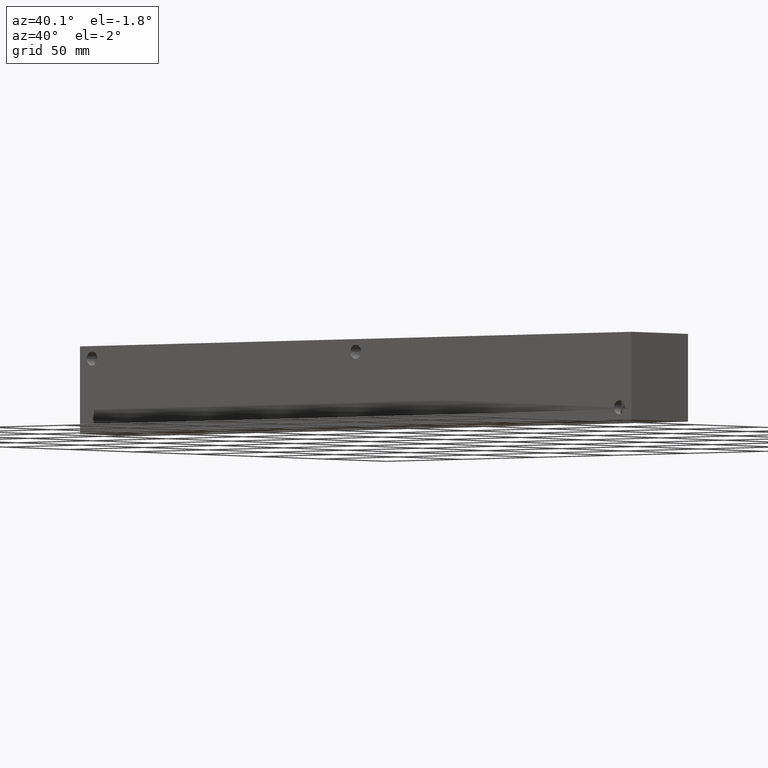
[diagram: clean part render]
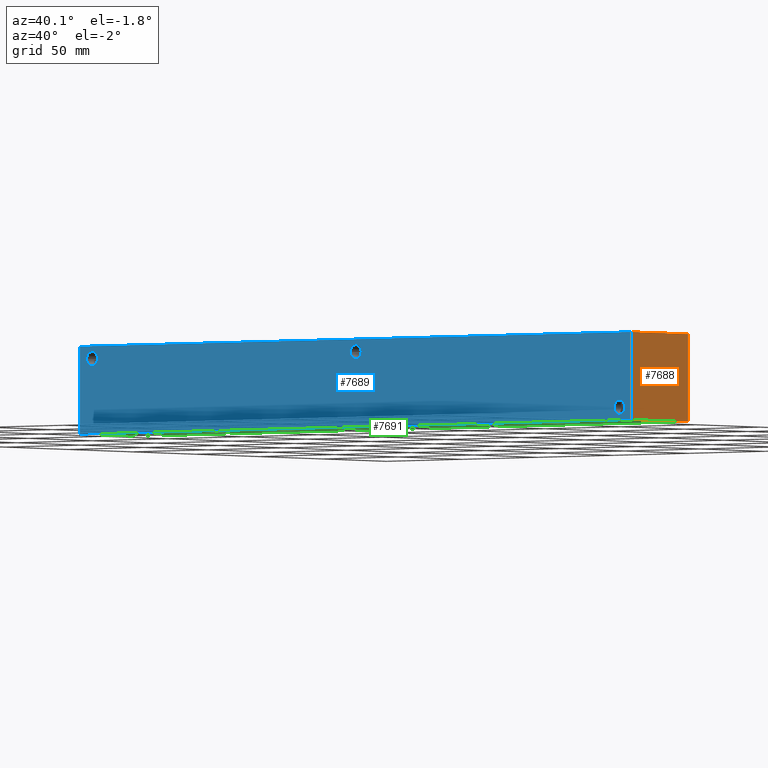
[diagram: same view with three faces highlighted in distinct colors, each labeled with its STEP entity id]
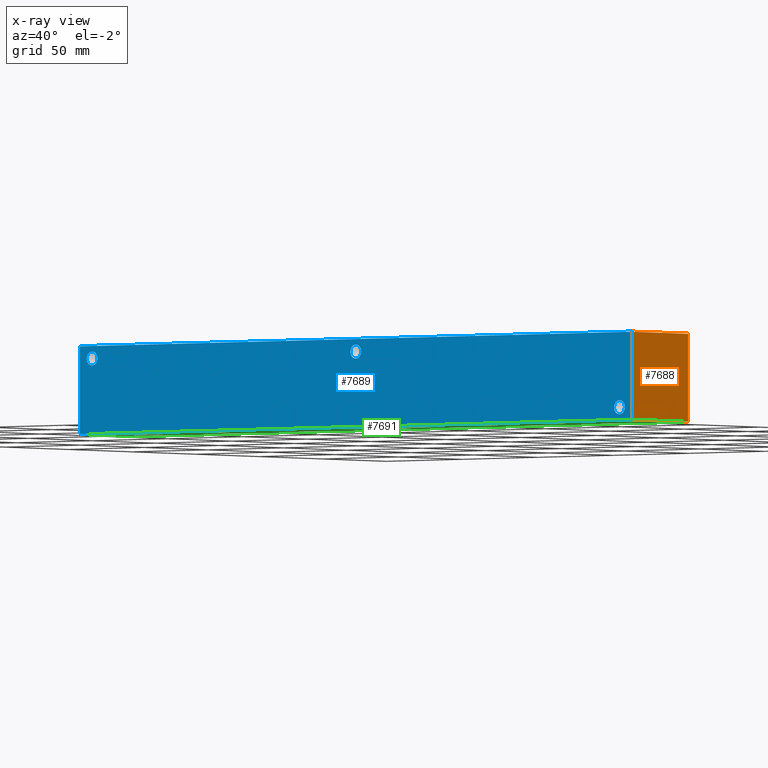
[diagram: x-ray of the same camera — body ghosted, the three highlighted faces saturated]
A machine part, auxiliary view with three faces highlighted in distinct colors.
The next image is the same camera in x-ray (body ghosted, the three faces saturated) — at least one of them is partly hidden behind the body in this view.
Their STEP definitions:

[orange] entity #7688 — the highlighted planar face has unit normal (1, 0, 0).
#524=PLANE('',#8141);
#917=FACE_OUTER_BOUND('',#1371,.T.);
#1371=EDGE_LOOP('',(#6863,#6864,#6865,#6866));
#1661=LINE('',#11799,#2381);
#2105=LINE('',#13152,#2825);
#2106=LINE('',#13155,#2826);
#2107=LINE('',#13156,#2827);
#2381=VECTOR('',#8563,10.);
#2825=VECTOR('',#9733,10.);
#2826=VECTOR('',#9736,10.);
#2827=VECTOR('',#9737,10.);
#3320=VERTEX_POINT('',#11796);
#3321=VERTEX_POINT('',#11798);
#3739=VERTEX_POINT('',#13150);
#3740=VERTEX_POINT('',#13154);
#4189=EDGE_CURVE('',#3320,#3321,#1661,.T.);
#4791=EDGE_CURVE('',#3739,#3321,#2105,.T.);
#4792=EDGE_CURVE('',#3740,#3739,#2106,.T.);
#4793=EDGE_CURVE('',#3740,#3320,#2107,.T.);
#6863=ORIENTED_EDGE('',*,*,#4792,.T.);
#6864=ORIENTED_EDGE('',*,*,#4791,.T.);
#6865=ORIENTED_EDGE('',*,*,#4189,.F.);
#6866=ORIENTED_EDGE('',*,*,#4793,.F.);
#7688=ADVANCED_FACE('',(#917),#524,.T.);
#8141=AXIS2_PLACEMENT_3D('',#13153,#9734,#9735);
#8563=DIRECTION('',(0.,1.,0.));
#9733=DIRECTION('',(0.,0.,1.));
#9734=DIRECTION('center_axis',(1.,0.,0.));
#9735=DIRECTION('ref_axis',(0.,1.,0.));
#9736=DIRECTION('',(0.,1.,0.));
#9737=DIRECTION('',(0.,0.,1.));
#11796=CARTESIAN_POINT('',(365.125,0.,44.45));
#11798=CARTESIAN_POINT('',(365.125,44.45,44.45));
#11799=CARTESIAN_POINT('',(365.125,0.,44.45));
#13150=CARTESIAN_POINT('',(365.125,44.45,0.));
#13152=CARTESIAN_POINT('',(365.125,44.45,0.));
#13153=CARTESIAN_POINT('Origin',(365.125,0.,0.));
#13154=CARTESIAN_POINT('',(365.125,0.,0.));
#13155=CARTESIAN_POINT('',(365.125,0.,0.));
#13156=CARTESIAN_POINT('',(365.125,0.,0.));

[blue] entity #7689 — the highlighted planar face has unit normal (0, -1, 0).
#164=CIRCLE('',#8032,3.5687);
#165=CIRCLE('',#8033,3.5687);
#167=CIRCLE('',#8042,3.5687);
#168=CIRCLE('',#8043,3.5687);
#170=CIRCLE('',#8051,3.5687);
#171=CIRCLE('',#8052,3.5687);
#277=FACE_BOUND('',#1373,.T.);
#278=FACE_BOUND('',#1374,.T.);
#279=FACE_BOUND('',#1375,.T.);
#525=PLANE('',#8142);
#918=FACE_OUTER_BOUND('',#1372,.T.);
#1372=EDGE_LOOP('',(#6867,#6868,#6869,#6870));
#1373=EDGE_LOOP('',(#6871,#6872));
#1374=EDGE_LOOP('',(#6873,#6874));
#1375=EDGE_LOOP('',(#6875,#6876));
#1660=LINE('',#11797,#2380);
#2102=LINE('',#13147,#2822);
#2107=LINE('',#13156,#2827);
#2108=LINE('',#13158,#2828);
#2380=VECTOR('',#8562,10.);
#2822=VECTOR('',#9728,10.);
#2827=VECTOR('',#9737,10.);
#2828=VECTOR('',#9740,10.);
#3319=VERTEX_POINT('',#11795);
#3320=VERTEX_POINT('',#11796);
#3671=VERTEX_POINT('',#12934);
#3672=VERTEX_POINT('',#12935);
#3676=VERTEX_POINT('',#12952);
#3677=VERTEX_POINT('',#12953);
#3681=VERTEX_POINT('',#12968);
#3682=VERTEX_POINT('',#12969);
#3738=VERTEX_POINT('',#13145);
#3740=VERTEX_POINT('',#13154);
#4188=EDGE_CURVE('',#3319,#3320,#1660,.T.);
#4687=EDGE_CURVE('',#3671,#3672,#164,.T.);
#4688=EDGE_CURVE('',#3672,#3671,#165,.T.);
#4697=EDGE_CURVE('',#3676,#3677,#167,.T.);
#4698=EDGE_CURVE('',#3677,#3676,#168,.T.);
#4706=EDGE_CURVE('',#3681,#3682,#170,.T.);
#4707=EDGE_CURVE('',#3682,#3681,#171,.T.);
#4788=EDGE_CURVE('',#3738,#3319,#2102,.T.);
#4793=EDGE_CURVE('',#3740,#3320,#2107,.T.);
#4794=EDGE_CURVE('',#3738,#3740,#2108,.T.);
#6867=ORIENTED_EDGE('',*,*,#4794,.T.);
#6868=ORIENTED_EDGE('',*,*,#4793,.T.);
#6869=ORIENTED_EDGE('',*,*,#4188,.F.);
#6870=ORIENTED_EDGE('',*,*,#4788,.F.);
#6871=ORIENTED_EDGE('',*,*,#4687,.T.);
#6872=ORIENTED_EDGE('',*,*,#4688,.T.);
#6873=ORIENTED_EDGE('',*,*,#4697,.T.);
#6874=ORIENTED_EDGE('',*,*,#4698,.T.);
#6875=ORIENTED_EDGE('',*,*,#4706,.T.);
#6876=ORIENTED_EDGE('',*,*,#4707,.T.);
#7689=ADVANCED_FACE('',(#918,#277,#278,#279),#525,.T.);
#8032=AXIS2_PLACEMENT_3D('',#12936,#9475,#9476);
#8033=AXIS2_PLACEMENT_3D('',#12937,#9477,#9478);
#8042=AXIS2_PLACEMENT_3D('',#12954,#9498,#9499);
#8043=AXIS2_PLACEMENT_3D('',#12955,#9500,#9501);
#8051=AXIS2_PLACEMENT_3D('',#12970,#9518,#9519);
#8052=AXIS2_PLACEMENT_3D('',#12971,#9520,#9521);
#8142=AXIS2_PLACEMENT_3D('',#13157,#9738,#9739);
#8562=DIRECTION('',(1.,0.,0.));
#9475=DIRECTION('center_axis',(0.,1.,0.));
#9476=DIRECTION('ref_axis',(1.,0.,0.));
#9477=DIRECTION('center_axis',(0.,1.,0.));
#9478=DIRECTION('ref_axis',(1.,0.,0.));
#9498=DIRECTION('center_axis',(0.,1.,0.));
#9499=DIRECTION('ref_axis',(1.,0.,0.));
#9500=DIRECTION('center_axis',(0.,1.,0.));
#9501=DIRECTION('ref_axis',(1.,0.,0.));
#9518=DIRECTION('center_axis',(0.,1.,0.));
#9519=DIRECTION('ref_axis',(1.,0.,0.));
#9520=DIRECTION('center_axis',(0.,1.,0.));
#9521=DIRECTION('ref_axis',(1.,0.,0.));
#9728=DIRECTION('',(0.,0.,1.));
#9737=DIRECTION('',(0.,0.,1.));
#9738=DIRECTION('center_axis',(0.,-1.,0.));
#9739=DIRECTION('ref_axis',(1.,0.,0.));
#9740=DIRECTION('',(1.,0.,0.));
#11795=CARTESIAN_POINT('',(0.,0.,44.45));
#11796=CARTESIAN_POINT('',(365.125,0.,44.45));
#11797=CARTESIAN_POINT('',(0.,0.,44.45));
#12934=CARTESIAN_POINT('',(360.7435,0.,6.35));
#12935=CARTESIAN_POINT('',(353.6061,0.,6.35));
#12936=CARTESIAN_POINT('Origin',(357.1748,0.,6.35));
#12937=CARTESIAN_POINT('Origin',(357.1748,0.,6.35));
#12952=CARTESIAN_POINT('',(11.4935,0.,38.1));
#12953=CARTESIAN_POINT('',(4.3561,0.,38.1));
#12954=CARTESIAN_POINT('Origin',(7.9248,0.,38.1));
#12955=CARTESIAN_POINT('Origin',(7.9248,0.,38.1));
#12968=CARTESIAN_POINT('',(186.1439,0.,38.1));
#12969=CARTESIAN_POINT('',(179.0065,0.,38.1));
#12970=CARTESIAN_POINT('Origin',(182.5752,0.,38.1));
#12971=CARTESIAN_POINT('Origin',(182.5752,0.,38.1));
#13145=CARTESIAN_POINT('',(0.,0.,0.));
#13147=CARTESIAN_POINT('',(0.,0.,0.));
#13154=CARTESIAN_POINT('',(365.125,0.,0.));
#13156=CARTESIAN_POINT('',(365.125,0.,0.));
#13157=CARTESIAN_POINT('Origin',(0.,0.,0.));
#13158=CARTESIAN_POINT('',(0.,0.,0.));

[green] entity #7691 — the highlighted planar face has unit normal (0, 0, 1).
#113=CIRCLE('',#7951,6.9342);
#114=CIRCLE('',#7952,6.9342);
#120=CIRCLE('',#7962,6.9342);
#121=CIRCLE('',#7963,6.9342);
#127=CIRCLE('',#7973,6.9342);
#128=CIRCLE('',#7974,6.9342);
#134=CIRCLE('',#7984,6.9342);
#135=CIRCLE('',#7985,6.9342);
#141=CIRCLE('',#7995,6.9342);
#142=CIRCLE('',#7996,6.9342);
#148=CIRCLE('',#8006,6.9342);
#149=CIRCLE('',#8007,6.9342);
#155=CIRCLE('',#8017,6.9342);
#156=CIRCLE('',#8018,6.9342);
#162=CIRCLE('',#8028,6.9342);
#163=CIRCLE('',#8029,6.9342);
#173=CIRCLE('',#8062,3.5687);
#174=CIRCLE('',#8064,3.5687);
#175=CIRCLE('',#8066,3.5687);
#280=FACE_BOUND('',#1378,.T.);
#281=FACE_BOUND('',#1379,.T.);
#282=FACE_BOUND('',#1380,.T.);
#283=FACE_BOUND('',#1381,.T.);
#284=FACE_BOUND('',#1382,.T.);
#285=FACE_BOUND('',#1383,.T.);
#286=FACE_BOUND('',#1384,.T.);
#287=FACE_BOUND('',#1385,.T.);
#288=FACE_BOUND('',#1386,.T.);
#289=FACE_BOUND('',#1387,.T.);
#290=FACE_BOUND('',#1388,.T.);
#527=PLANE('',#8144);
#920=FACE_OUTER_BOUND('',#1377,.T.);
#1377=EDGE_LOOP('',(#6880,#6881,#6882,#6883));
#1378=EDGE_LOOP('',(#6884,#6885));
#1379=EDGE_LOOP('',(#6886,#6887));
#1380=EDGE_LOOP('',(#6888,#6889));
#1381=EDGE_LOOP('',(#6890,#6891));
#1382=EDGE_LOOP('',(#6892,#6893));
#1383=EDGE_LOOP('',(#6894,#6895));
#1384=EDGE_LOOP('',(#6896,#6897));
#1385=EDGE_LOOP('',(#6898,#6899));
#1386=EDGE_LOOP('',(#6900));
#1387=EDGE_LOOP('',(#6901));
#1388=EDGE_LOOP('',(#6902));
#2101=LINE('',#13146,#2821);
#2104=LINE('',#13151,#2824);
#2106=LINE('',#13155,#2826);
#2108=LINE('',#13158,#2828);
#2821=VECTOR('',#9727,10.);
#2824=VECTOR('',#9732,10.);
#2826=VECTOR('',#9736,10.);
#2828=VECTOR('',#9740,10.);
#3613=VERTEX_POINT('',#12772);
#3614=VERTEX_POINT('',#12773);
#3621=VERTEX_POINT('',#12794);
#3622=VERTEX_POINT('',#12795);
#3629=VERTEX_POINT('',#12816);
#3630=VERTEX_POINT('',#12817);
#3637=VERTEX_POINT('',#12838);
#3638=VERTEX_POINT('',#12839);
#3645=VERTEX_POINT('',#12860);
#3646=VERTEX_POINT('',#12861);
#3653=VERTEX_POINT('',#12882);
#3654=VERTEX_POINT('',#12883);
#3661=VERTEX_POINT('',#12904);
#3662=VERTEX_POINT('',#12905);
#3669=VERTEX_POINT('',#12926);
#3670=VERTEX_POINT('',#12927);
#3686=VERTEX_POINT('',#12988);
#3687=VERTEX_POINT('',#12992);
#3688=VERTEX_POINT('',#12996);
#3737=VERTEX_POINT('',#13144);
#3738=VERTEX_POINT('',#13145);
#3739=VERTEX_POINT('',#13150);
#3740=VERTEX_POINT('',#13154);
#4613=EDGE_CURVE('',#3613,#3614,#113,.T.);
#4614=EDGE_CURVE('',#3614,#3613,#114,.T.);
#4623=EDGE_CURVE('',#3621,#3622,#120,.T.);
#4624=EDGE_CURVE('',#3622,#3621,#121,.T.);
#4633=EDGE_CURVE('',#3629,#3630,#127,.T.);
#4634=EDGE_CURVE('',#3630,#3629,#128,.T.);
#4643=EDGE_CURVE('',#3637,#3638,#134,.T.);
#4644=EDGE_CURVE('',#3638,#3637,#135,.T.);
#4653=EDGE_CURVE('',#3645,#3646,#141,.T.);
#4654=EDGE_CURVE('',#3646,#3645,#142,.T.);
#4663=EDGE_CURVE('',#3653,#3654,#148,.T.);
#4664=EDGE_CURVE('',#3654,#3653,#149,.T.);
#4673=EDGE_CURVE('',#3661,#3662,#155,.T.);
#4674=EDGE_CURVE('',#3662,#3661,#156,.T.);
#4683=EDGE_CURVE('',#3669,#3670,#162,.T.);
#4684=EDGE_CURVE('',#3670,#3669,#163,.T.);
#4718=EDGE_CURVE('',#3686,#3686,#173,.T.);
#4720=EDGE_CURVE('',#3687,#3687,#174,.T.);
#4722=EDGE_CURVE('',#3688,#3688,#175,.T.);
#4787=EDGE_CURVE('',#3737,#3738,#2101,.T.);
#4790=EDGE_CURVE('',#3739,#3737,#2104,.T.);
#4792=EDGE_CURVE('',#3740,#3739,#2106,.T.);
#4794=EDGE_CURVE('',#3738,#3740,#2108,.T.);
#6880=ORIENTED_EDGE('',*,*,#4794,.F.);
#6881=ORIENTED_EDGE('',*,*,#4787,.F.);
#6882=ORIENTED_EDGE('',*,*,#4790,.F.);
#6883=ORIENTED_EDGE('',*,*,#4792,.F.);
#6884=ORIENTED_EDGE('',*,*,#4613,.T.);
#6885=ORIENTED_EDGE('',*,*,#4614,.T.);
#6886=ORIENTED_EDGE('',*,*,#4623,.T.);
#6887=ORIENTED_EDGE('',*,*,#4624,.T.);
#6888=ORIENTED_EDGE('',*,*,#4633,.T.);
#6889=ORIENTED_EDGE('',*,*,#4634,.T.);
#6890=ORIENTED_EDGE('',*,*,#4643,.T.);
#6891=ORIENTED_EDGE('',*,*,#4644,.T.);
#6892=ORIENTED_EDGE('',*,*,#4653,.T.);
#6893=ORIENTED_EDGE('',*,*,#4654,.T.);
#6894=ORIENTED_EDGE('',*,*,#4663,.T.);
#6895=ORIENTED_EDGE('',*,*,#4664,.T.);
#6896=ORIENTED_EDGE('',*,*,#4673,.T.);
#6897=ORIENTED_EDGE('',*,*,#4674,.T.);
#6898=ORIENTED_EDGE('',*,*,#4683,.T.);
#6899=ORIENTED_EDGE('',*,*,#4684,.T.);
#6900=ORIENTED_EDGE('',*,*,#4718,.T.);
#6901=ORIENTED_EDGE('',*,*,#4720,.T.);
#6902=ORIENTED_EDGE('',*,*,#4722,.T.);
#7691=ADVANCED_FACE('',(#920,#280,#281,#282,#283,#284,#285,#286,#287,#288,
#289,#290),#527,.F.);
#7951=AXIS2_PLACEMENT_3D('',#12774,#9290,#9291);
#7952=AXIS2_PLACEMENT_3D('',#12775,#9292,#9293);
#7962=AXIS2_PLACEMENT_3D('',#12796,#9315,#9316);
#7963=AXIS2_PLACEMENT_3D('',#12797,#9317,#9318);
#7973=AXIS2_PLACEMENT_3D('',#12818,#9340,#9341);
#7974=AXIS2_PLACEMENT_3D('',#12819,#9342,#9343);
#7984=AXIS2_PLACEMENT_3D('',#12840,#9365,#9366);
#7985=AXIS2_PLACEMENT_3D('',#12841,#9367,#9368);
#7995=AXIS2_PLACEMENT_3D('',#12862,#9390,#9391);
#7996=AXIS2_PLACEMENT_3D('',#12863,#9392,#9393);
#8006=AXIS2_PLACEMENT_3D('',#12884,#9415,#9416);
#8007=AXIS2_PLACEMENT_3D('',#12885,#9417,#9418);
#8017=AXIS2_PLACEMENT_3D('',#12906,#9440,#9441);
#8018=AXIS2_PLACEMENT_3D('',#12907,#9442,#9443);
#8028=AXIS2_PLACEMENT_3D('',#12928,#9465,#9466);
#8029=AXIS2_PLACEMENT_3D('',#12929,#9467,#9468);
#8062=AXIS2_PLACEMENT_3D('',#12990,#9545,#9546);
#8064=AXIS2_PLACEMENT_3D('',#12994,#9550,#9551);
#8066=AXIS2_PLACEMENT_3D('',#12998,#9555,#9556);
#8144=AXIS2_PLACEMENT_3D('',#13160,#9743,#9744);
#9290=DIRECTION('center_axis',(0.,0.,1.));
#9291=DIRECTION('ref_axis',(1.,0.,0.));
#9292=DIRECTION('center_axis',(0.,0.,1.));
#9293=DIRECTION('ref_axis',(1.,0.,0.));
#9315=DIRECTION('center_axis',(0.,0.,1.));
#9316=DIRECTION('ref_axis',(1.,0.,0.));
#9317=DIRECTION('center_axis',(0.,0.,1.));
#9318=DIRECTION('ref_axis',(1.,0.,0.));
#9340=DIRECTION('center_axis',(0.,0.,1.));
#9341=DIRECTION('ref_axis',(1.,0.,0.));
#9342=DIRECTION('center_axis',(0.,0.,1.));
#9343=DIRECTION('ref_axis',(1.,0.,0.));
#9365=DIRECTION('center_axis',(0.,0.,1.));
#9366=DIRECTION('ref_axis',(1.,0.,0.));
#9367=DIRECTION('center_axis',(0.,0.,1.));
#9368=DIRECTION('ref_axis',(1.,0.,0.));
#9390=DIRECTION('center_axis',(0.,0.,1.));
#9391=DIRECTION('ref_axis',(1.,0.,0.));
#9392=DIRECTION('center_axis',(0.,0.,1.));
#9393=DIRECTION('ref_axis',(1.,0.,0.));
#9415=DIRECTION('center_axis',(0.,0.,1.));
#9416=DIRECTION('ref_axis',(1.,0.,0.));
#9417=DIRECTION('center_axis',(0.,0.,1.));
#9418=DIRECTION('ref_axis',(1.,0.,0.));
#9440=DIRECTION('center_axis',(0.,0.,1.));
#9441=DIRECTION('ref_axis',(1.,0.,0.));
#9442=DIRECTION('center_axis',(0.,0.,1.));
#9443=DIRECTION('ref_axis',(1.,0.,0.));
#9465=DIRECTION('center_axis',(0.,0.,1.));
#9466=DIRECTION('ref_axis',(1.,0.,0.));
#9467=DIRECTION('center_axis',(0.,0.,1.));
#9468=DIRECTION('ref_axis',(1.,0.,0.));
#9545=DIRECTION('center_axis',(0.,0.,1.));
#9546=DIRECTION('ref_axis',(1.,0.,0.));
#9550=DIRECTION('center_axis',(0.,0.,1.));
#9551=DIRECTION('ref_axis',(1.,0.,0.));
#9555=DIRECTION('center_axis',(0.,0.,1.));
#9556=DIRECTION('ref_axis',(1.,0.,0.));
#9727=DIRECTION('',(0.,-1.,0.));
#9732=DIRECTION('',(-1.,0.,0.));
#9736=DIRECTION('',(0.,1.,0.));
#9740=DIRECTION('',(1.,0.,0.));
#9743=DIRECTION('center_axis',(0.,0.,1.));
#9744=DIRECTION('ref_axis',(1.,0.,0.));
#12772=CARTESIAN_POINT('',(300.609,22.225,0.));
#12773=CARTESIAN_POINT('',(286.7406,22.225,0.));
#12774=CARTESIAN_POINT('Origin',(293.6748,22.225,0.));
#12775=CARTESIAN_POINT('Origin',(293.6748,22.225,0.));
#12794=CARTESIAN_POINT('',(211.709,22.225,0.));
#12795=CARTESIAN_POINT('',(197.8406,22.225,0.));
#12796=CARTESIAN_POINT('Origin',(204.7748,22.225,0.));
#12797=CARTESIAN_POINT('Origin',(204.7748,22.225,0.));
#12816=CARTESIAN_POINT('',(122.809,22.225,0.));
#12817=CARTESIAN_POINT('',(108.9406,22.225,0.));
#12818=CARTESIAN_POINT('Origin',(115.8748,22.225,0.));
#12819=CARTESIAN_POINT('Origin',(115.8748,22.225,0.));
#12838=CARTESIAN_POINT('',(33.909,22.225,0.));
#12839=CARTESIAN_POINT('',(20.0406,22.225,0.));
#12840=CARTESIAN_POINT('Origin',(26.9748,22.225,0.));
#12841=CARTESIAN_POINT('Origin',(26.9748,22.225,0.));
#12860=CARTESIAN_POINT('',(78.359,22.225,0.));
#12861=CARTESIAN_POINT('',(64.4906,22.225,0.));
#12862=CARTESIAN_POINT('Origin',(71.4248,22.225,0.));
#12863=CARTESIAN_POINT('Origin',(71.4248,22.225,0.));
#12882=CARTESIAN_POINT('',(167.259,22.225,0.));
#12883=CARTESIAN_POINT('',(153.3906,22.225,0.));
#12884=CARTESIAN_POINT('Origin',(160.3248,22.225,0.));
#12885=CARTESIAN_POINT('Origin',(160.3248,22.225,0.));
#12904=CARTESIAN_POINT('',(256.159,22.225,0.));
#12905=CARTESIAN_POINT('',(242.2906,22.225,0.));
#12906=CARTESIAN_POINT('Origin',(249.2248,22.225,0.));
#12907=CARTESIAN_POINT('Origin',(249.2248,22.225,0.));
#12926=CARTESIAN_POINT('',(345.059,22.225,0.));
#12927=CARTESIAN_POINT('',(331.1906,22.225,0.));
#12928=CARTESIAN_POINT('Origin',(338.1248,22.225,0.));
#12929=CARTESIAN_POINT('Origin',(338.1248,22.225,0.));
#12988=CARTESIAN_POINT('',(353.6061,6.35,0.));
#12990=CARTESIAN_POINT('Origin',(357.1748,6.35,0.));
#12992=CARTESIAN_POINT('',(4.3561,38.1,0.));
#12994=CARTESIAN_POINT('Origin',(7.9248,38.1,0.));
#12996=CARTESIAN_POINT('',(179.0065,38.1,0.));
#12998=CARTESIAN_POINT('Origin',(182.5752,38.1,0.));
#13144=CARTESIAN_POINT('',(0.,44.45,0.));
#13145=CARTESIAN_POINT('',(0.,0.,0.));
#13146=CARTESIAN_POINT('',(0.,44.45,0.));
#13150=CARTESIAN_POINT('',(365.125,44.45,0.));
#13151=CARTESIAN_POINT('',(365.125,44.45,0.));
#13154=CARTESIAN_POINT('',(365.125,0.,0.));
#13155=CARTESIAN_POINT('',(365.125,0.,0.));
#13158=CARTESIAN_POINT('',(0.,0.,0.));
#13160=CARTESIAN_POINT('Origin',(182.5625,22.225,0.));